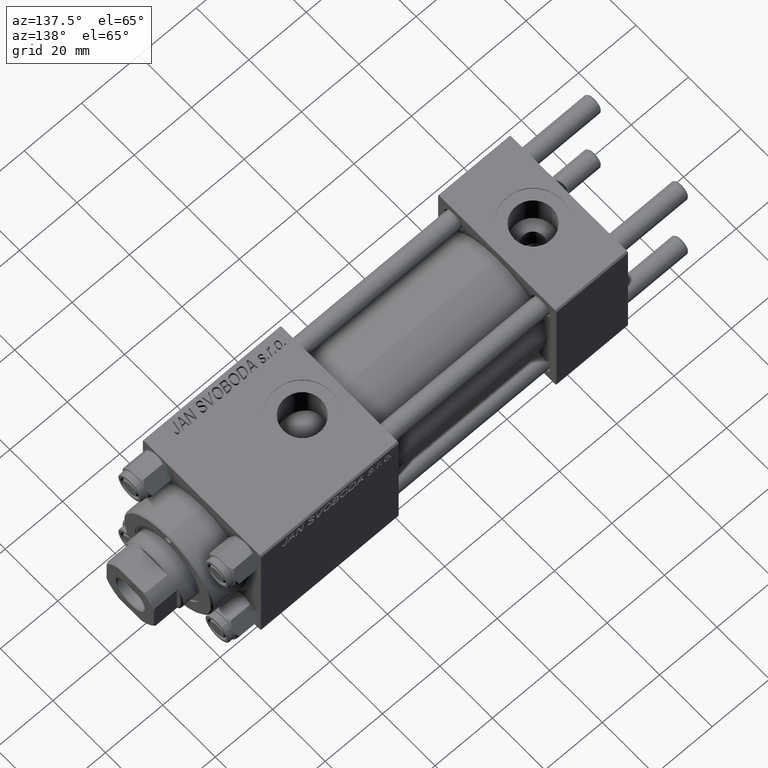
[diagram: clean part render]
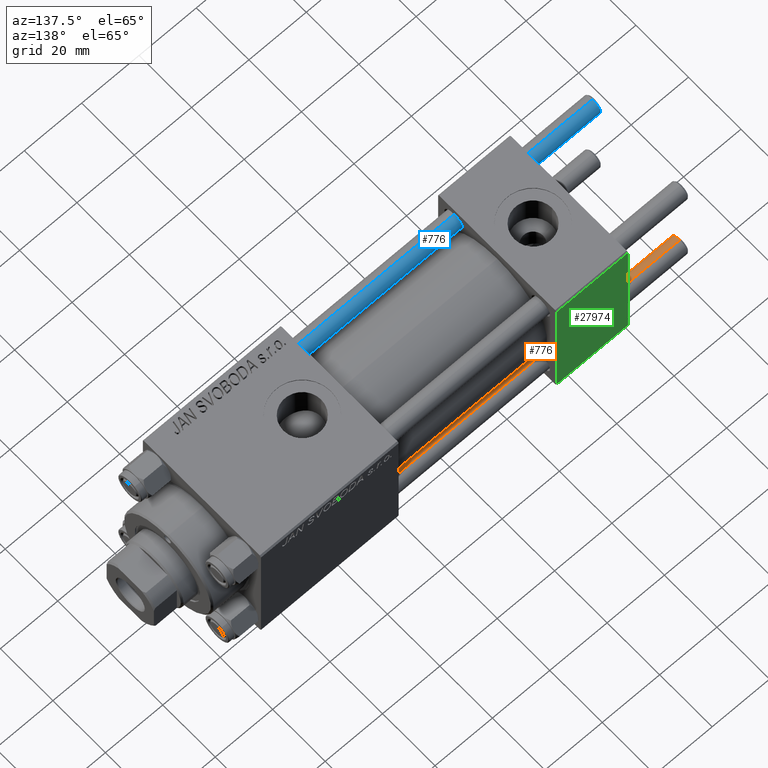
[diagram: same view with three faces highlighted in distinct colors, each labeled with its STEP entity id]
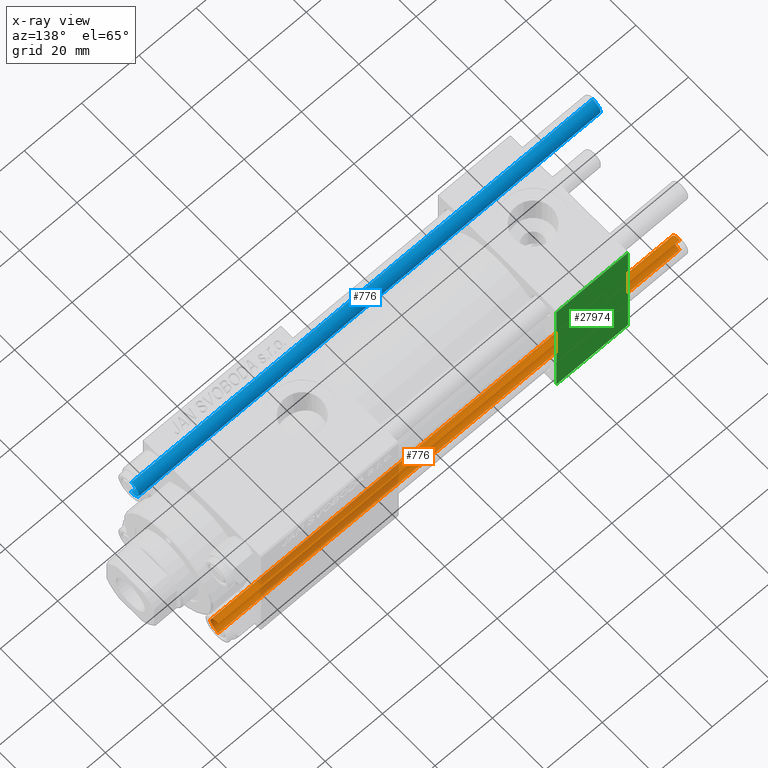
[diagram: x-ray of the same camera — body ghosted, the three highlighted faces saturated]
A machine part, auxiliary view with three faces highlighted in distinct colors.
The next image is the same camera in x-ray (body ghosted, the three faces saturated) — at least one of them is partly hidden behind the body in this view.
Their STEP definitions:

[orange] entity #776 — the highlighted cylindrical surface (edge-blend (fillet) strip) has radius 3 mm, axis along (1, 0, -0).
#358 = CARTESIAN_POINT ( 'NONE',  ( 0.000000000000000000, 0.000000000000000000, 0.5000000000000004441 ) ) ;
#732 = CARTESIAN_POINT ( 'NONE',  ( 0.000000000000000000, 0.000000000000000000, 161.5000000000000568 ) ) ;
#776 = ADVANCED_FACE ( 'NONE', ( #41440 ), #22203, .T. ) ;
#2328 = EDGE_CURVE ( 'NONE', #47714, #32862, #2520, .T. ) ;
#2520 = CIRCLE ( 'NONE', #14654, 3.000000000000000444 ) ;
#3065 = CARTESIAN_POINT ( 'NONE',  ( -3.000000000000000444, 0.000000000000000000, 162.0000000000000000 ) ) ;
#4386 = DIRECTION ( 'NONE',  ( 1.000000000000000000, 0.000000000000000000, 0.000000000000000000 ) ) ;
#5173 = VECTOR ( 'NONE', #6363, 1000.000000000000000 ) ;
#5314 = AXIS2_PLACEMENT_3D ( 'NONE', #358, #34770, #4386 ) ;
#5659 = EDGE_CURVE ( 'NONE', #47714, #35272, #30734, .T. ) ;
#6363 = DIRECTION ( 'NONE',  ( -0.000000000000000000, -0.000000000000000000, -1.000000000000000000 ) ) ;
#6760 = DIRECTION ( 'NONE',  ( -1.000000000000000000, 0.000000000000000000, 0.000000000000000000 ) ) ;
#7038 = ORIENTED_EDGE ( 'NONE', *, *, #5659, .F. ) ;
#7096 = EDGE_LOOP ( 'NONE', ( #7038, #16679, #10647, #12931 ) ) ;
#7951 = CARTESIAN_POINT ( 'NONE',  ( 3.000000000000000444, 3.673940397442060361E-16, 162.0000000000000000 ) ) ;
#8407 = CARTESIAN_POINT ( 'NONE',  ( 3.000000000000000444, 3.673940397442060361E-16, 0.5000000000000004441 ) ) ;
#10647 = ORIENTED_EDGE ( 'NONE', *, *, #46057, .T. ) ;
#11378 = AXIS2_PLACEMENT_3D ( 'NONE', #33604, #18153, #6760 ) ;
#11427 = CARTESIAN_POINT ( 'NONE',  ( -3.000000000000000444, 0.000000000000000000, 161.5000000000000568 ) ) ;
#11561 = VECTOR ( 'NONE', #26693, 1000.000000000000000 ) ;
#12931 = ORIENTED_EDGE ( 'NONE', *, *, #49899, .T. ) ;
#14654 = AXIS2_PLACEMENT_3D ( 'NONE', #732, #16676, #27327 ) ;
#16676 = DIRECTION ( 'NONE',  ( 0.000000000000000000, 0.000000000000000000, -1.000000000000000000 ) ) ;
#16679 = ORIENTED_EDGE ( 'NONE', *, *, #2328, .T. ) ;
#18153 = DIRECTION ( 'NONE',  ( -0.000000000000000000, -0.000000000000000000, -1.000000000000000000 ) ) ;
#22203 = CYLINDRICAL_SURFACE ( 'NONE', #11378, 3.000000000000000444 ) ;
#26349 = CIRCLE ( 'NONE', #5314, 3.000000000000000444 ) ;
#26363 = LINE ( 'NONE', #3065, #5173 ) ;
#26693 = DIRECTION ( 'NONE',  ( -0.000000000000000000, -0.000000000000000000, -1.000000000000000000 ) ) ;
#27327 = DIRECTION ( 'NONE',  ( 1.000000000000000000, 0.000000000000000000, 0.000000000000000000 ) ) ;
#30734 = LINE ( 'NONE', #7951, #11561 ) ;
#32862 = VERTEX_POINT ( 'NONE', #11427 ) ;
#33604 = CARTESIAN_POINT ( 'NONE',  ( 0.000000000000000000, 0.000000000000000000, 162.0000000000000000 ) ) ;
#34770 = DIRECTION ( 'NONE',  ( -0.000000000000000000, -0.000000000000000000, 1.000000000000000000 ) ) ;
#35272 = VERTEX_POINT ( 'NONE', #8407 ) ;
#36105 = VERTEX_POINT ( 'NONE', #48130 ) ;
#41440 = FACE_OUTER_BOUND ( 'NONE', #7096, .T. ) ;
#46057 = EDGE_CURVE ( 'NONE', #32862, #36105, #26363, .T. ) ;
#46602 = CARTESIAN_POINT ( 'NONE',  ( 3.000000000000000444, 3.673940397442060361E-16, 161.5000000000000568 ) ) ;
#47714 = VERTEX_POINT ( 'NONE', #46602 ) ;
#48130 = CARTESIAN_POINT ( 'NONE',  ( -3.000000000000000444, 0.000000000000000000, 0.5000000000000004441 ) ) ;
#49899 = EDGE_CURVE ( 'NONE', #36105, #35272, #26349, .T. ) ;

[blue] entity #776 — the highlighted cylindrical surface (edge-blend (fillet) strip) has radius 3 mm, axis along (1, -0, 0).
#358 = CARTESIAN_POINT ( 'NONE',  ( 0.000000000000000000, 0.000000000000000000, 0.5000000000000004441 ) ) ;
#732 = CARTESIAN_POINT ( 'NONE',  ( 0.000000000000000000, 0.000000000000000000, 161.5000000000000568 ) ) ;
#776 = ADVANCED_FACE ( 'NONE', ( #41440 ), #22203, .T. ) ;
#2328 = EDGE_CURVE ( 'NONE', #47714, #32862, #2520, .T. ) ;
#2520 = CIRCLE ( 'NONE', #14654, 3.000000000000000444 ) ;
#3065 = CARTESIAN_POINT ( 'NONE',  ( -3.000000000000000444, 0.000000000000000000, 162.0000000000000000 ) ) ;
#4386 = DIRECTION ( 'NONE',  ( 1.000000000000000000, 0.000000000000000000, 0.000000000000000000 ) ) ;
#5173 = VECTOR ( 'NONE', #6363, 1000.000000000000000 ) ;
#5314 = AXIS2_PLACEMENT_3D ( 'NONE', #358, #34770, #4386 ) ;
#5659 = EDGE_CURVE ( 'NONE', #47714, #35272, #30734, .T. ) ;
#6363 = DIRECTION ( 'NONE',  ( -0.000000000000000000, -0.000000000000000000, -1.000000000000000000 ) ) ;
#6760 = DIRECTION ( 'NONE',  ( -1.000000000000000000, 0.000000000000000000, 0.000000000000000000 ) ) ;
#7038 = ORIENTED_EDGE ( 'NONE', *, *, #5659, .F. ) ;
#7096 = EDGE_LOOP ( 'NONE', ( #7038, #16679, #10647, #12931 ) ) ;
#7951 = CARTESIAN_POINT ( 'NONE',  ( 3.000000000000000444, 3.673940397442060361E-16, 162.0000000000000000 ) ) ;
#8407 = CARTESIAN_POINT ( 'NONE',  ( 3.000000000000000444, 3.673940397442060361E-16, 0.5000000000000004441 ) ) ;
#10647 = ORIENTED_EDGE ( 'NONE', *, *, #46057, .T. ) ;
#11378 = AXIS2_PLACEMENT_3D ( 'NONE', #33604, #18153, #6760 ) ;
#11427 = CARTESIAN_POINT ( 'NONE',  ( -3.000000000000000444, 0.000000000000000000, 161.5000000000000568 ) ) ;
#11561 = VECTOR ( 'NONE', #26693, 1000.000000000000000 ) ;
#12931 = ORIENTED_EDGE ( 'NONE', *, *, #49899, .T. ) ;
#14654 = AXIS2_PLACEMENT_3D ( 'NONE', #732, #16676, #27327 ) ;
#16676 = DIRECTION ( 'NONE',  ( 0.000000000000000000, 0.000000000000000000, -1.000000000000000000 ) ) ;
#16679 = ORIENTED_EDGE ( 'NONE', *, *, #2328, .T. ) ;
#18153 = DIRECTION ( 'NONE',  ( -0.000000000000000000, -0.000000000000000000, -1.000000000000000000 ) ) ;
#22203 = CYLINDRICAL_SURFACE ( 'NONE', #11378, 3.000000000000000444 ) ;
#26349 = CIRCLE ( 'NONE', #5314, 3.000000000000000444 ) ;
#26363 = LINE ( 'NONE', #3065, #5173 ) ;
#26693 = DIRECTION ( 'NONE',  ( -0.000000000000000000, -0.000000000000000000, -1.000000000000000000 ) ) ;
#27327 = DIRECTION ( 'NONE',  ( 1.000000000000000000, 0.000000000000000000, 0.000000000000000000 ) ) ;
#30734 = LINE ( 'NONE', #7951, #11561 ) ;
#32862 = VERTEX_POINT ( 'NONE', #11427 ) ;
#33604 = CARTESIAN_POINT ( 'NONE',  ( 0.000000000000000000, 0.000000000000000000, 162.0000000000000000 ) ) ;
#34770 = DIRECTION ( 'NONE',  ( -0.000000000000000000, -0.000000000000000000, 1.000000000000000000 ) ) ;
#35272 = VERTEX_POINT ( 'NONE', #8407 ) ;
#36105 = VERTEX_POINT ( 'NONE', #48130 ) ;
#41440 = FACE_OUTER_BOUND ( 'NONE', #7096, .T. ) ;
#46057 = EDGE_CURVE ( 'NONE', #32862, #36105, #26363, .T. ) ;
#46602 = CARTESIAN_POINT ( 'NONE',  ( 3.000000000000000444, 3.673940397442060361E-16, 161.5000000000000568 ) ) ;
#47714 = VERTEX_POINT ( 'NONE', #46602 ) ;
#48130 = CARTESIAN_POINT ( 'NONE',  ( -3.000000000000000444, 0.000000000000000000, 0.5000000000000004441 ) ) ;
#49899 = EDGE_CURVE ( 'NONE', #36105, #35272, #26349, .T. ) ;

[green] entity #27974 — the highlighted planar face has unit normal (0, 1, 0).
#448 = ORIENTED_EDGE ( 'NONE', *, *, #15529, .T. ) ;
#832 = DIRECTION ( 'NONE',  ( 0.000000000000000000, 0.000000000000000000, -1.000000000000000000 ) ) ;
#2490 = DIRECTION ( 'NONE',  ( 0.000000000000000000, -0.000000000000000000, 1.000000000000000000 ) ) ;
#4908 = CARTESIAN_POINT ( 'NONE',  ( 0.000000000000000000, 22.50000000000000000, -21.99999999999996803 ) ) ;
#6332 = EDGE_CURVE ( 'NONE', #34863, #21252, #25524, .T. ) ;
#6646 = LINE ( 'NONE', #10948, #22271 ) ;
#7142 = DIRECTION ( 'NONE',  ( 0.000000000000000000, 0.000000000000000000, -1.000000000000000000 ) ) ;
#8510 = DIRECTION ( 'NONE',  ( -1.000000000000000000, 0.000000000000000000, 0.000000000000000000 ) ) ;
#9076 = CARTESIAN_POINT ( 'NONE',  ( 25.00000000000000000, 22.50000000000000000, 21.99999999999999645 ) ) ;
#10948 = CARTESIAN_POINT ( 'NONE',  ( 0.000000000000000000, 22.50000000000000000, 22.50000000000000355 ) ) ;
#11030 = ORIENTED_EDGE ( 'NONE', *, *, #26301, .F. ) ;
#12052 = CARTESIAN_POINT ( 'NONE',  ( 25.00000000000000000, 22.50000000000000000, -21.99999999999998224 ) ) ;
#14419 = CARTESIAN_POINT ( 'NONE',  ( 25.00000000000000000, 22.50000000000000000, 21.99999999999999645 ) ) ;
#15529 = EDGE_CURVE ( 'NONE', #40832, #21829, #46724, .T. ) ;
#19811 = VECTOR ( 'NONE', #832, 1000.000000000000000 ) ;
#20479 = CARTESIAN_POINT ( 'NONE',  ( 25.00000000000000000, 22.50000000000000000, -21.99999999999996803 ) ) ;
#21252 = VERTEX_POINT ( 'NONE', #14419 ) ;
#21829 = VERTEX_POINT ( 'NONE', #4908 ) ;
#22271 = VECTOR ( 'NONE', #7142, 1000.000000000000000 ) ;
#24375 = CARTESIAN_POINT ( 'NONE',  ( 25.00000000000000000, 22.50000000000000000, 22.50000000000000355 ) ) ;
#24473 = ORIENTED_EDGE ( 'NONE', *, *, #25000, .T. ) ;
#25000 = EDGE_CURVE ( 'NONE', #21252, #40832, #31221, .T. ) ;
#25524 = LINE ( 'NONE', #9076, #48872 ) ;
#26301 = EDGE_CURVE ( 'NONE', #34863, #21829, #6646, .T. ) ;
#26536 = FACE_OUTER_BOUND ( 'NONE', #33286, .T. ) ;
#27974 = ADVANCED_FACE ( 'NONE', ( #26536 ), #34375, .T. ) ;
#28266 = CARTESIAN_POINT ( 'NONE',  ( 0.000000000000000000, 22.50000000000000000, 21.99999999999999645 ) ) ;
#28767 = ORIENTED_EDGE ( 'NONE', *, *, #6332, .T. ) ;
#28813 = DIRECTION ( 'NONE',  ( 1.000000000000000000, 0.000000000000000000, 0.000000000000000000 ) ) ;
#30581 = DIRECTION ( 'NONE',  ( -0.000000000000000000, 1.000000000000000000, 0.000000000000000000 ) ) ;
#31221 = LINE ( 'NONE', #24375, #19811 ) ;
#33286 = EDGE_LOOP ( 'NONE', ( #24473, #448, #11030, #28767 ) ) ;
#34375 = PLANE ( 'NONE',  #39338 ) ;
#34863 = VERTEX_POINT ( 'NONE', #28266 ) ;
#39338 = AXIS2_PLACEMENT_3D ( 'NONE', #45016, #30581, #2490 ) ;
#40832 = VERTEX_POINT ( 'NONE', #20479 ) ;
#45016 = CARTESIAN_POINT ( 'NONE',  ( 25.00000000000000000, 22.50000000000000000, 22.50000000000000355 ) ) ;
#46724 = LINE ( 'NONE', #12052, #49483 ) ;
#48872 = VECTOR ( 'NONE', #28813, 1000.000000000000000 ) ;
#49483 = VECTOR ( 'NONE', #8510, 1000.000000000000000 ) ;